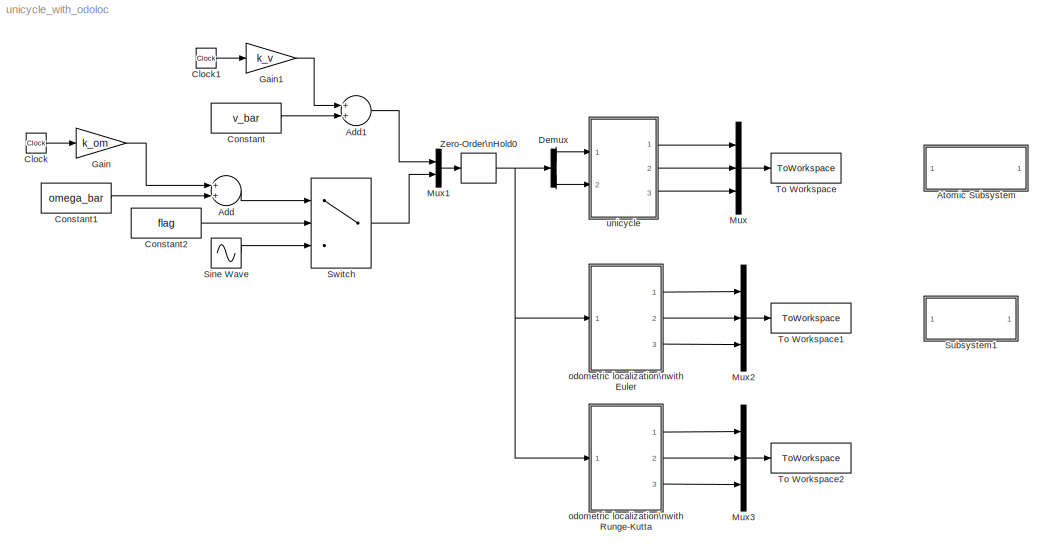
MODEL unicycle_with_odoloc
KIND model
BLOCK [Sum] Add
  InputSameDT = off
  OutDataTypeStr = Inherit: Inherit via internal rule
  Ports = [2, 1]
  SID = 114
  SaturateOnIntegerOverflow = off
BLOCK [Sum] Add1
  InputSameDT = off
  OutDataTypeStr = Inherit: Inherit via internal rule
  Ports = [2, 1]
  SID = 117
  SaturateOnIntegerOverflow = off
BLOCK [SubSystem] Atomic Subsystem
  OpenFcn = init
  Ports = []
  RequestExecContextInheritance = off
  SID = 57
  TreatAsAtomicUnit = on
  Variant = off
BLOCK [Clock] Clock
  SID = 115
BLOCK [Clock] Clock1
  SID = 118
BLOCK [Constant] Constant
  SID = 85
  Value = v_bar
BLOCK [Constant] Constant1
  SID = 88
  Value = omega_bar
BLOCK [Constant] Constant2
  SID = 90
  Value = flag
BLOCK [Demux] Demux
  DisplayOption = bar
  Outputs = 2
  Ports = [1, 2]
  SID = 1
BLOCK [Gain] Gain
  Gain = k_om
  OutDataTypeStr = Inherit: Inherit via internal rule
  ParamDataTypeStr = Inherit: Inherit via internal rule
  SID = 116
  SaturateOnIntegerOverflow = off
BLOCK [Gain] Gain1
  Gain = k_v
  OutDataTypeStr = Inherit: Inherit via internal rule
  ParamDataTypeStr = Inherit: Inherit via internal rule
  SID = 119
  SaturateOnIntegerOverflow = off
BLOCK [Mux] Mux
  DisplayOption = bar
  Inputs = 3
  Ports = [3, 1]
  SID = 3
BLOCK [Mux] Mux1
  DisplayOption = bar
  Inputs = 2
  Ports = [2, 1]
  SID = 89
BLOCK [Mux] Mux2
  DisplayOption = bar
  Inputs = 3
  Ports = [3, 1]
  SID = 34
BLOCK [Mux] Mux3
  DisplayOption = bar
  Inputs = 3
  Ports = [3, 1]
  SID = 109
BLOCK [Sin] Sine Wave
  Amplitude = omega_bar
  Frequency = freq
  Ports = [0, 1]
  SID = 86
  SampleTime = 0
BLOCK [SubSystem] Subsystem1
  OpenFcn = plots
  Ports = []
  RequestExecContextInheritance = off
  SID = 58
  ShowPortLabels = none
  Variant = off
BLOCK [Switch] Switch
  Criteria = u2 > Threshold
  InputSameDT = off
  SID = 87
  SaturateOnIntegerOverflow = off
BLOCK [ToWorkspace] To Workspace
  MaxDataPoints = inf
  Ports = [1]
  SID = 7
  SaveFormat = Structure With Time
  VariableName = configuration
BLOCK [ToWorkspace] To Workspace1
  MaxDataPoints = inf
  Ports = [1]
  SID = 35
  SaveFormat = Structure With Time
  VariableName = odometry_Euler
BLOCK [ToWorkspace] To Workspace2
  MaxDataPoints = inf
  Ports = [1]
  SID = 110
  SaveFormat = Structure With Time
  VariableName = odometry_RK
BLOCK [ZeroOrderHold] Zero-Order\nHold0
  SID = 111
  SampleTime = T_s
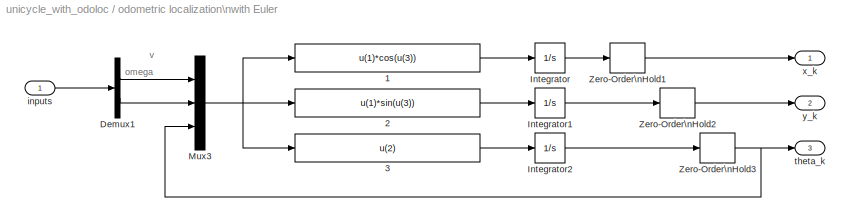
BLOCK [SubSystem] odometric localization\nwith Euler
  Ports = [1, 3]
  RequestExecContextInheritance = off
  SID = 22
  Variant = off
BLOCK [Fcn] odometric localization\nwith Euler/ 1
  Expr = u(1)*cos(u(3))
  SID = 76
BLOCK [Fcn] odometric localization\nwith Euler/ 2
  Expr = u(1)*sin(u(3))
  SID = 77
BLOCK [Fcn] odometric localization\nwith Euler/ 3
  Expr = u(2)
  SID = 78
BLOCK [Demux] odometric localization\nwith Euler/Demux1
  DisplayOption = bar
  Outputs = 2
  Ports = [1, 2]
  SID = 82
BLOCK [Integrator] odometric localization\nwith Euler/Integrator
  InitialCondition = x_0
  Ports = [1, 1]
  SID = 63
BLOCK [Integrator] odometric localization\nwith Euler/Integrator1
  InitialCondition = y_0
  Ports = [1, 1]
  SID = 64
BLOCK [Integrator] odometric localization\nwith Euler/Integrator2
  InitialCondition = theta_0
  Ports = [1, 1]
  SID = 65
BLOCK [Mux] odometric localization\nwith Euler/Mux3
  DisplayOption = bar
  Inputs = 3
  Ports = [3, 1]
  SID = 75
BLOCK [ZeroOrderHold] odometric localization\nwith Euler/Zero-Order\nHold1
  SID = 73
  SampleTime = T_s
BLOCK [ZeroOrderHold] odometric localization\nwith Euler/Zero-Order\nHold2
  SID = 79
  SampleTime = T_s
BLOCK [ZeroOrderHold] odometric localization\nwith Euler/Zero-Order\nHold3
  SID = 80
  SampleTime = T_s
BLOCK [Inport] odometric localization\nwith Euler/inputs
  IconDisplay = Port number
  SID = 61
BLOCK [Outport] odometric localization\nwith Euler/theta_k
  IconDisplay = Port number
  Port = 3
  SID = 39
BLOCK [Outport] odometric localization\nwith Euler/x_k
  IconDisplay = Port number
  SID = 37
BLOCK [Outport] odometric localization\nwith Euler/y_k
  IconDisplay = Port number
  Port = 2
  SID = 38
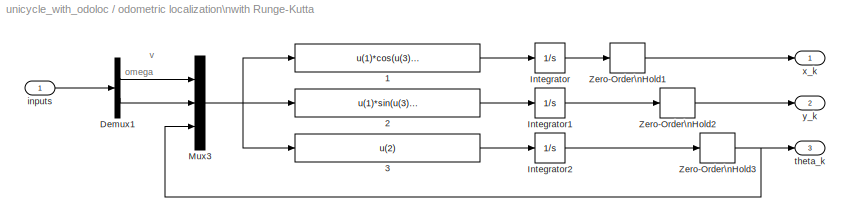
BLOCK [SubSystem] odometric localization\nwith Runge-Kutta
  Ports = [1, 3]
  RequestExecContextInheritance = off
  SID = 91
  Variant = off
BLOCK [Fcn] odometric localization\nwith Runge-Kutta/ 1
  Expr = u(1)*cos(u(3)+u(2)*T_s/2)
  SID = 93
BLOCK [Fcn] odometric localization\nwith Runge-Kutta/ 2
  Expr = u(1)*sin(u(3)+u(2)*T_s/2)
  SID = 94
BLOCK [Fcn] odometric localization\nwith Runge-Kutta/ 3
  Expr = u(2)
  SID = 95
BLOCK [Demux] odometric localization\nwith Runge-Kutta/Demux1
  DisplayOption = bar
  Outputs = 2
  Ports = [1, 2]
  SID = 96
BLOCK [Integrator] odometric localization\nwith Runge-Kutta/Integrator
  InitialCondition = x_0
  Ports = [1, 1]
  SID = 97
BLOCK [Integrator] odometric localization\nwith Runge-Kutta/Integrator1
  InitialCondition = y_0
  Ports = [1, 1]
  SID = 98
BLOCK [Integrator] odometric localization\nwith Runge-Kutta/Integrator2
  InitialCondition = theta_0
  Ports = [1, 1]
  SID = 99
BLOCK [Mux] odometric localization\nwith Runge-Kutta/Mux3
  DisplayOption = bar
  Inputs = 3
  Ports = [3, 1]
  SID = 100
BLOCK [ZeroOrderHold] odometric localization\nwith Runge-Kutta/Zero-Order\nHold1
  SID = 101
  SampleTime = T_s
BLOCK [ZeroOrderHold] odometric localization\nwith Runge-Kutta/Zero-Order\nHold2
  SID = 102
  SampleTime = T_s
BLOCK [ZeroOrderHold] odometric localization\nwith Runge-Kutta/Zero-Order\nHold3
  SID = 103
  SampleTime = T_s
BLOCK [Inport] odometric localization\nwith Runge-Kutta/inputs
  IconDisplay = Port number
  SID = 92
BLOCK [Outport] odometric localization\nwith Runge-Kutta/theta_k
  IconDisplay = Port number
  Port = 3
  SID = 106
BLOCK [Outport] odometric localization\nwith Runge-Kutta/x_k
  IconDisplay = Port number
  SID = 104
BLOCK [Outport] odometric localization\nwith Runge-Kutta/y_k
  IconDisplay = Port number
  Port = 2
  SID = 105
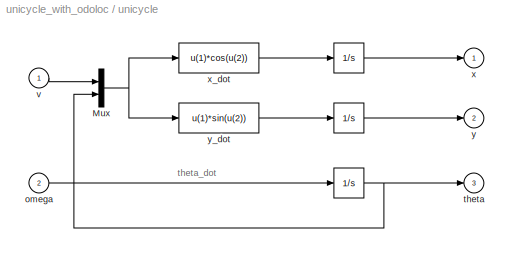
BLOCK [SubSystem] unicycle
  Ports = [2, 3]
  RequestExecContextInheritance = off
  SID = 44
  Variant = off
BLOCK [Integrator] unicycle/ 
  InitialCondition = theta_0
  Ports = [1, 1]
  SID = 47
BLOCK [Integrator] unicycle/   
  InitialCondition = x_0
  Ports = [1, 1]
  SID = 48
BLOCK [Integrator] unicycle/    
  InitialCondition = y_0
  Ports = [1, 1]
  SID = 49
BLOCK [Mux] unicycle/Mux
  DisplayOption = bar
  Inputs = 2
  Ports = [2, 1]
  SID = 50
BLOCK [Inport] unicycle/omega
  IconDisplay = Port number
  Port = 2
  SID = 46
BLOCK [Outport] unicycle/theta
  IconDisplay = Port number
  Port = 3
  SID = 55
BLOCK [Inport] unicycle/v
  IconDisplay = Port number
  SID = 45
BLOCK [Outport] unicycle/x
  IconDisplay = Port number
  SID = 53
BLOCK [Fcn] unicycle/x_dot
  Expr = u(1)*cos(u(2))
  SID = 51
BLOCK [Outport] unicycle/y
  IconDisplay = Port number
  Port = 2
  SID = 54
BLOCK [Fcn] unicycle/y_dot
  Expr = u(1)*sin(u(2))
  SID = 52
ANNOTATION odometric localization\nwith Euler: omega
ANNOTATION odometric localization\nwith Euler: v
ANNOTATION odometric localization\nwith Runge-Kutta: omega
ANNOTATION odometric localization\nwith Runge-Kutta: v
ANNOTATION unicycle: theta_dot
LINE Add1:1 -> Mux1:1
LINE Add:1 -> Switch:1
LINE Clock1:1 -> Gain1:1
LINE Clock:1 -> Gain:1
LINE Constant1:1 -> Add:2
LINE Constant2:1 -> Switch:2
LINE Constant:1 -> Add1:2
LINE Demux:1 -> unicycle:1
LINE Demux:2 -> unicycle:2
LINE Gain1:1 -> Add1:1
LINE Gain:1 -> Add:1
LINE Mux1:1 -> Zero-Order\nHold0:1
LINE Mux2:1 -> To Workspace1:1
LINE Mux3:1 -> To Workspace2:1
LINE Mux:1 -> To Workspace:1
LINE Sine Wave:1 -> Switch:3
LINE Switch:1 -> Mux1:2
NET Zero-Order\nHold0:1 -> Demux:1, odometric localization\nwith Euler:1, odometric localization\nwith Runge-Kutta:1
LINE odometric localization\nwith Euler/ 1:1 -> odometric localization\nwith Euler/Integrator:1
LINE odometric localization\nwith Euler/ 2:1 -> odometric localization\nwith Euler/Integrator1:1
LINE odometric localization\nwith Euler/ 3:1 -> odometric localization\nwith Euler/Integrator2:1
LINE odometric localization\nwith Euler/Demux1:1 -> odometric localization\nwith Euler/Mux3:1
LINE odometric localization\nwith Euler/Demux1:2 -> odometric localization\nwith Euler/Mux3:2
LINE odometric localization\nwith Euler/Integrator1:1 -> odometric localization\nwith Euler/Zero-Order\nHold2:1
LINE odometric localization\nwith Euler/Integrator2:1 -> odometric localization\nwith Euler/Zero-Order\nHold3:1
LINE odometric localization\nwith Euler/Integrator:1 -> odometric localization\nwith Euler/Zero-Order\nHold1:1
NET odometric localization\nwith Euler/Mux3:1 -> odometric localization\nwith Euler/ 1:1, odometric localization\nwith Euler/ 2:1, odometric localization\nwith Euler/ 3:1
LINE odometric localization\nwith Euler/Zero-Order\nHold1:1 -> odometric localization\nwith Euler/x_k:1
LINE odometric localization\nwith Euler/Zero-Order\nHold2:1 -> odometric localization\nwith Euler/y_k:1
NET odometric localization\nwith Euler/Zero-Order\nHold3:1 -> odometric localization\nwith Euler/Mux3:3, odometric localization\nwith Euler/theta_k:1
LINE odometric localization\nwith Euler/inputs:1 -> odometric localization\nwith Euler/Demux1:1
LINE odometric localization\nwith Euler:1 -> Mux2:1
LINE odometric localization\nwith Euler:2 -> Mux2:2
LINE odometric localization\nwith Euler:3 -> Mux2:3
LINE odometric localization\nwith Runge-Kutta/ 1:1 -> odometric localization\nwith Runge-Kutta/Integrator:1
LINE odometric localization\nwith Runge-Kutta/ 2:1 -> odometric localization\nwith Runge-Kutta/Integrator1:1
LINE odometric localization\nwith Runge-Kutta/ 3:1 -> odometric localization\nwith Runge-Kutta/Integrator2:1
LINE odometric localization\nwith Runge-Kutta/Demux1:1 -> odometric localization\nwith Runge-Kutta/Mux3:1
LINE odometric localization\nwith Runge-Kutta/Demux1:2 -> odometric localization\nwith Runge-Kutta/Mux3:2
LINE odometric localization\nwith Runge-Kutta/Integrator1:1 -> odometric localization\nwith Runge-Kutta/Zero-Order\nHold2:1
LINE odometric localization\nwith Runge-Kutta/Integrator2:1 -> odometric localization\nwith Runge-Kutta/Zero-Order\nHold3:1
LINE odometric localization\nwith Runge-Kutta/Integrator:1 -> odometric localization\nwith Runge-Kutta/Zero-Order\nHold1:1
NET odometric localization\nwith Runge-Kutta/Mux3:1 -> odometric localization\nwith Runge-Kutta/ 1:1, odometric localization\nwith Runge-Kutta/ 2:1, odometric localization\nwith Runge-Kutta/ 3:1
LINE odometric localization\nwith Runge-Kutta/Zero-Order\nHold1:1 -> odometric localization\nwith Runge-Kutta/x_k:1
LINE odometric localization\nwith Runge-Kutta/Zero-Order\nHold2:1 -> odometric localization\nwith Runge-Kutta/y_k:1
NET odometric localization\nwith Runge-Kutta/Zero-Order\nHold3:1 -> odometric localization\nwith Runge-Kutta/Mux3:3, odometric localization\nwith Runge-Kutta/theta_k:1
LINE odometric localization\nwith Runge-Kutta/inputs:1 -> odometric localization\nwith Runge-Kutta/Demux1:1
LINE odometric localization\nwith Runge-Kutta:1 -> Mux3:1
LINE odometric localization\nwith Runge-Kutta:2 -> Mux3:2
LINE odometric localization\nwith Runge-Kutta:3 -> Mux3:3
LINE unicycle/    :1 -> unicycle/y:1
LINE unicycle/   :1 -> unicycle/x:1
NET unicycle/ :1 -> unicycle/Mux:2, unicycle/theta:1
NET unicycle/Mux:1 -> unicycle/x_dot:1, unicycle/y_dot:1
LINE unicycle/omega:1 -> unicycle/ :1
LINE unicycle/v:1 -> unicycle/Mux:1
LINE unicycle/x_dot:1 -> unicycle/   :1
LINE unicycle/y_dot:1 -> unicycle/    :1
LINE unicycle:1 -> Mux:1
LINE unicycle:2 -> Mux:2
LINE unicycle:3 -> Mux:3
note: NET lines group one-source signal fan-out (src -> all destinations, sorted); 1:1 wires keep LINE
